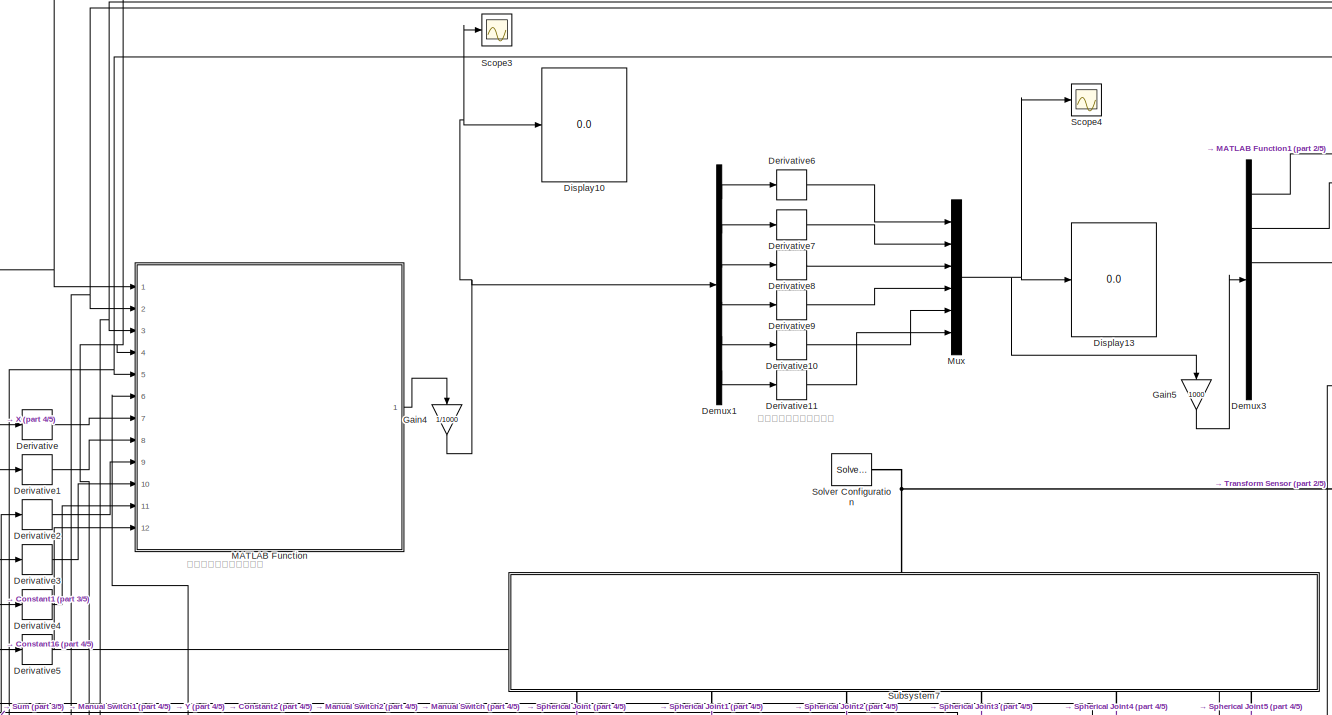
[diagram: root canvas - part 1/5, top center region]
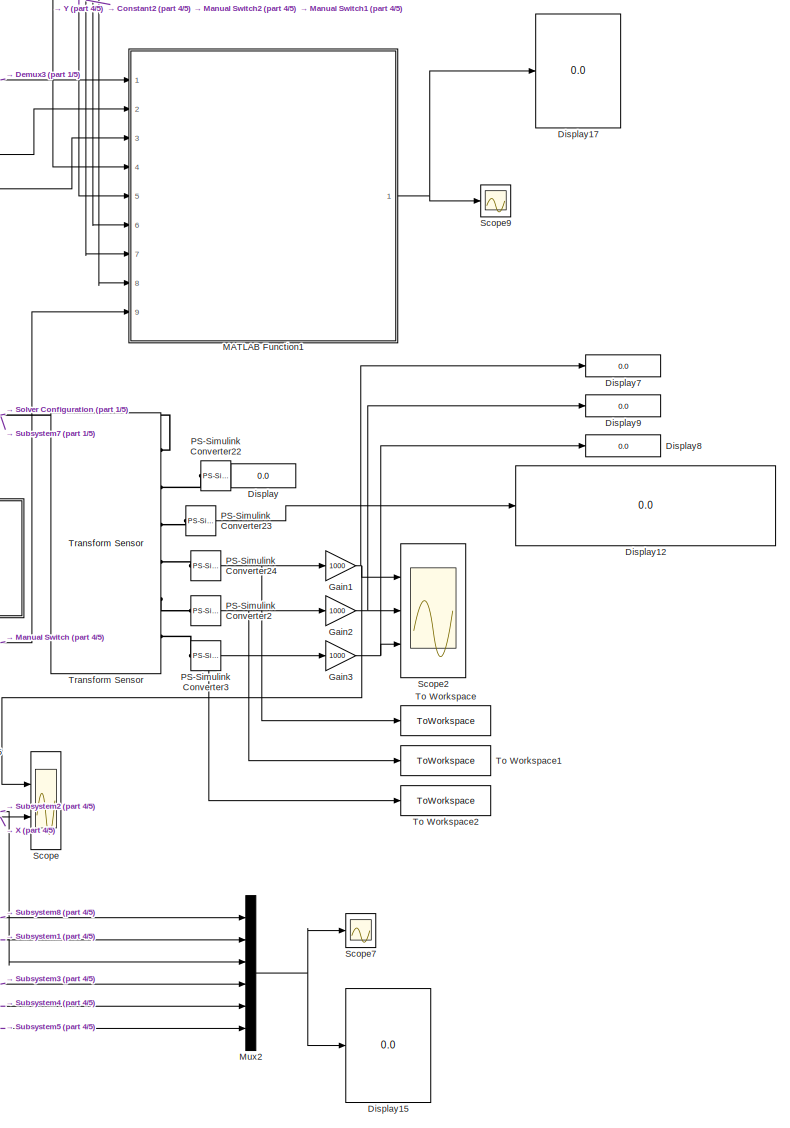
[diagram: root canvas - part 2/5, top right region]
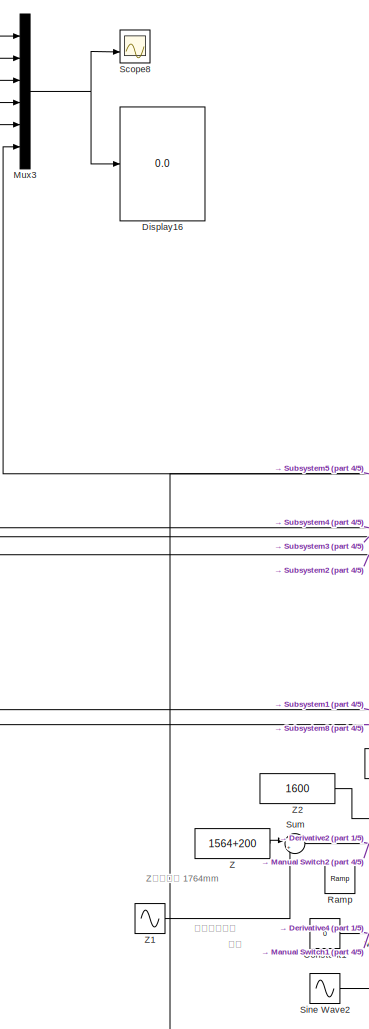
[diagram: root canvas - part 3/5, middle left region]
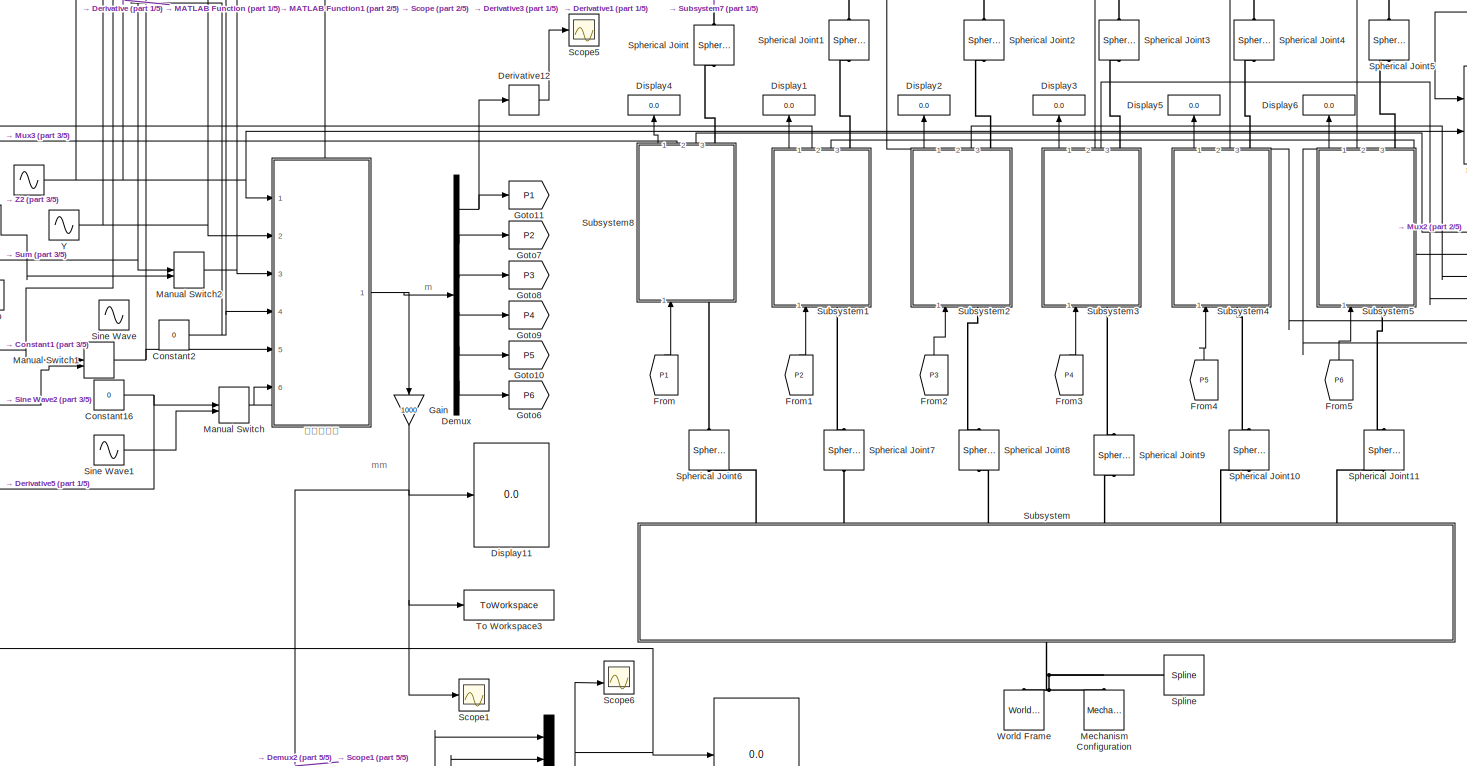
[diagram: root canvas - part 4/5, central region]
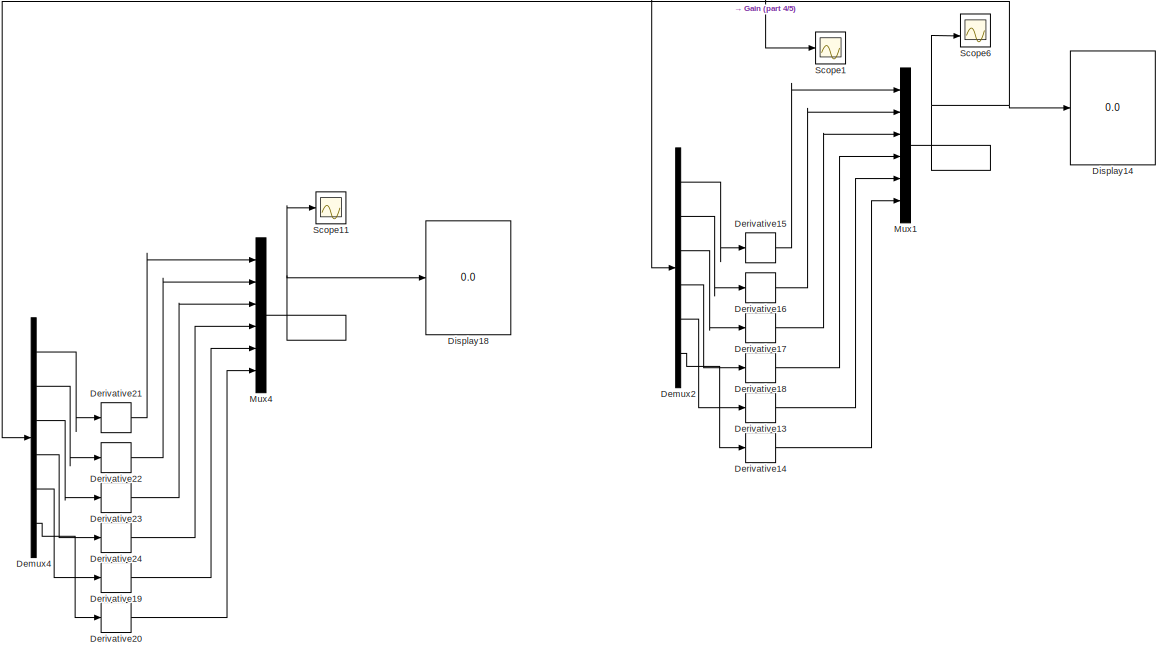
[diagram: root canvas - part 5/5, bottom left region]
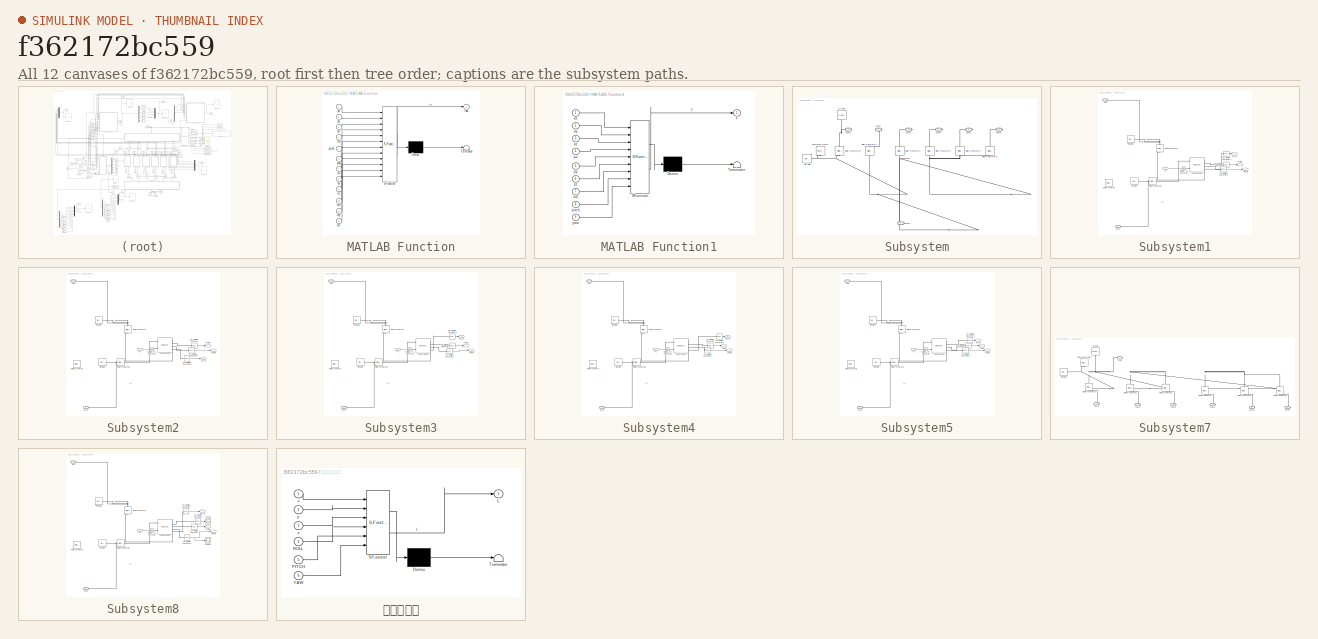
[diagram: thumbnail index - all 12 canvases of the model, root first then tree order]
MODEL slx_f362172bc559
KIND model
CONFIG AbsTol = 1e-3
CONFIG EnableMultiTasking = on
CONFIG FixedStep = auto
CONFIG MaxStep = auto
CONFIG MinStep = auto
CONFIG RelTol = 1e-3
CONFIG SampleTimeConstraint = Unconstrained
CONFIG SolverName = VariableStepAuto
CONFIG StartTime = 0.0
CONFIG StopTime = 10
BLOCK [Constant] Constant1
  Value = 0
BLOCK [Constant] Constant16
  Value = 0
BLOCK [Constant] Constant2
  Value = 0
BLOCK [Demux] Demux
  Outputs = 6
  Ports = [1, 6]
BLOCK [Demux] Demux1
  Outputs = 6
  Ports = [1, 6]
BLOCK [Demux] Demux2
  Outputs = 6
  Ports = [1, 6]
BLOCK [Demux] Demux3
  Outputs = 6
  Ports = [1, 6]
BLOCK [Demux] Demux4
  Outputs = 6
  Ports = [1, 6]
BLOCK [Derivative] Derivative
BLOCK [Derivative] Derivative1
BLOCK [Derivative] Derivative10
BLOCK [Derivative] Derivative11
BLOCK [Derivative] Derivative12
BLOCK [Derivative] Derivative13
BLOCK [Derivative] Derivative14
BLOCK [Derivative] Derivative15
BLOCK [Derivative] Derivative16
BLOCK [Derivative] Derivative17
BLOCK [Derivative] Derivative18
BLOCK [Derivative] Derivative19
BLOCK [Derivative] Derivative2
BLOCK [Derivative] Derivative20
BLOCK [Derivative] Derivative21
BLOCK [Derivative] Derivative22
BLOCK [Derivative] Derivative23
BLOCK [Derivative] Derivative24
BLOCK [Derivative] Derivative3
BLOCK [Derivative] Derivative4
BLOCK [Derivative] Derivative5
BLOCK [Derivative] Derivative6
BLOCK [Derivative] Derivative7
BLOCK [Derivative] Derivative8
BLOCK [Derivative] Derivative9
BLOCK [Display] Display
  Decimation = 1
  Ports = [1]
BLOCK [Display] Display1
  Decimation = 1
  NameLocation = right
  Ports = [1]
BLOCK [Display] Display10
  Decimation = 1
  Ports = [1]
BLOCK [Display] Display11
  Decimation = 1
  Ports = [1]
BLOCK [Display] Display12
  Decimation = 1
  Ports = [1]
BLOCK [Display] Display13
  Decimation = 1
  Ports = [1]
BLOCK [Display] Display14
  Decimation = 1
  Ports = [1]
BLOCK [Display] Display15
  Decimation = 1
  Ports = [1]
BLOCK [Display] Display16
  Decimation = 1
  Ports = [1]
BLOCK [Display] Display17
  Decimation = 1
  Ports = [1]
BLOCK [Display] Display18
  Decimation = 1
  Ports = [1]
BLOCK [Display] Display2
  Decimation = 1
  NameLocation = right
  Ports = [1]
BLOCK [Display] Display3
  Decimation = 1
  NameLocation = right
  Ports = [1]
BLOCK [Display] Display4
  Decimation = 1
  NameLocation = right
  Ports = [1]
BLOCK [Display] Display5
  Decimation = 1
  NameLocation = right
  Ports = [1]
BLOCK [Display] Display6
  Decimation = 1
  NameLocation = right
  Ports = [1]
BLOCK [Display] Display7
  Decimation = 1
  Ports = [1]
BLOCK [Display] Display8
  Decimation = 1
  Ports = [1]
BLOCK [Display] Display9
  Decimation = 1
  Ports = [1]
BLOCK [From] From
  GotoTag = P1
  NameLocation = right
BLOCK [From] From1
  GotoTag = P2
  NameLocation = right
BLOCK [From] From2
  GotoTag = P3
  NameLocation = right
BLOCK [From] From3
  GotoTag = P4
  NameLocation = right
BLOCK [From] From4
  GotoTag = P5
  NameLocation = right
BLOCK [From] From5
  GotoTag = P6
  NameLocation = right
BLOCK [Gain] Gain
  Gain = 1000
  NameLocation = left
BLOCK [Gain] Gain1
  Gain = 1000
BLOCK [Gain] Gain2
  Gain = 1000
BLOCK [Gain] Gain3
  Gain = 1000
BLOCK [Gain] Gain4
  Gain = 1/1000
  NameLocation = left
BLOCK [Gain] Gain5
  Gain = 1000
  NameLocation = left
BLOCK [Goto] Goto10
  GotoTag = P5
BLOCK [Goto] Goto11
  GotoTag = P1
BLOCK [Goto] Goto6
  GotoTag = P6
BLOCK [Goto] Goto7
  GotoTag = P2
BLOCK [Goto] Goto8
  GotoTag = P3
BLOCK [Goto] Goto9
  GotoTag = P4
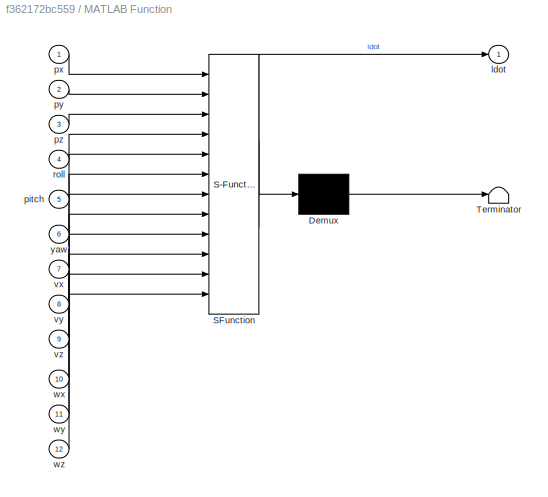
BLOCK [SubSystem] MATLAB Function
  ErrorFcn = Stateflow.Translate.translate
  PermitHierarchicalResolution = ExplicitOnly
  Ports = [12, 1]
  RequestExecContextInheritance = off
  SFBlockType = MATLAB Function
  TreatAsAtomicUnit = on
BLOCK [Demux] MATLAB Function/ Demux 
  Outputs = 1
  Ports = [1, 1]
BLOCK [S-Function] MATLAB Function/ SFunction 
  EnableBusSupport = on
  FunctionName = sf_sfun
  PortCounts = [12 2]
  Ports = [12, 2]
  SFcnIsStateOwnerBlock = off
  SFunctionDeploymentMode = off
  Tag = Stateflow S-Function 2
BLOCK [Terminator] MATLAB Function/ Terminator 
BLOCK [Outport] MATLAB Function/ldot
BLOCK [Inport] MATLAB Function/pitch
  Port = 5
BLOCK [Inport] MATLAB Function/px
BLOCK [Inport] MATLAB Function/py
  Port = 2
BLOCK [Inport] MATLAB Function/pz
  Port = 3
BLOCK [Inport] MATLAB Function/roll
  Port = 4
BLOCK [Inport] MATLAB Function/vx
  Port = 7
BLOCK [Inport] MATLAB Function/vy
  Port = 8
BLOCK [Inport] MATLAB Function/vz
  Port = 9
BLOCK [Inport] MATLAB Function/wx
  Port = 10
BLOCK [Inport] MATLAB Function/wy
  Port = 11
BLOCK [Inport] MATLAB Function/wz
  Port = 12
BLOCK [Inport] MATLAB Function/yaw
  Port = 6
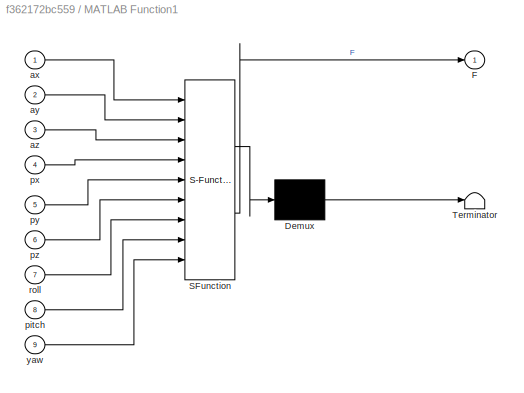
BLOCK [SubSystem] MATLAB Function1
  ErrorFcn = Stateflow.Translate.translate
  PermitHierarchicalResolution = ExplicitOnly
  Ports = [9, 1]
  RequestExecContextInheritance = off
  SFBlockType = MATLAB Function
  TreatAsAtomicUnit = on
BLOCK [Demux] MATLAB Function1/ Demux 
  Outputs = 1
  Ports = [1, 1]
BLOCK [S-Function] MATLAB Function1/ SFunction 
  EnableBusSupport = on
  FunctionName = sf_sfun
  PortCounts = [9 2]
  Ports = [9, 2]
  SFcnIsStateOwnerBlock = off
  SFunctionDeploymentMode = off
  Tag = Stateflow S-Function 3
BLOCK [Terminator] MATLAB Function1/ Terminator 
BLOCK [Outport] MATLAB Function1/F
BLOCK [Inport] MATLAB Function1/ax
BLOCK [Inport] MATLAB Function1/ay
  Port = 2
BLOCK [Inport] MATLAB Function1/az
  Port = 3
BLOCK [Inport] MATLAB Function1/pitch
  Port = 8
BLOCK [Inport] MATLAB Function1/px
  Port = 4
BLOCK [Inport] MATLAB Function1/py
  Port = 5
BLOCK [Inport] MATLAB Function1/pz
  Port = 6
BLOCK [Inport] MATLAB Function1/roll
  Port = 7
BLOCK [Inport] MATLAB Function1/yaw
  Port = 9
BLOCK [ManualSwitch] Manual Switch
BLOCK [ManualSwitch] Manual Switch1
BLOCK [ManualSwitch] Manual Switch2
BLOCK [Reference] Mechanism Configuration  REF=sm_lib/Utilities/Mechanism
Configuration
  NameLocation = right
  Ports = [0, 0, 0, 0, 0, 0, 1]
  SourceBlock = sm_lib/Utilities/Mechanism\nConfiguration
  SourceProductBaseCode = MS
  SourceType = Mechanism\nConfiguration
BLOCK [Mux] Mux
  DisplayOption = bar
  Inputs = 6
  Ports = [6, 1]
BLOCK [Mux] Mux1
  DisplayOption = bar
  Inputs = 6
  Ports = [6, 1]
BLOCK [Mux] Mux2
  DisplayOption = bar
  Inputs = 6
  Ports = [6, 1]
BLOCK [Mux] Mux3
  DisplayOption = bar
  Inputs = 6
  Ports = [6, 1]
BLOCK [Mux] Mux4
  DisplayOption = bar
  Inputs = 6
  Ports = [6, 1]
BLOCK [Reference] PS-Simulink Converter2  REF=nesl_utility/PS-Simulink
Converter
  Ports = [0, 1, 0, 0, 0, 1]
  SourceBlock = nesl_utility/PS-Simulink\nConverter
  SourceProductBaseCode = SS
  SourceType = PS-Simulink\nConverter
BLOCK [Reference] PS-Simulink Converter22  REF=nesl_utility/PS-Simulink
Converter
  Ports = [0, 1, 0, 0, 0, 1]
  SourceBlock = nesl_utility/PS-Simulink\nConverter
  SourceProductBaseCode = SS
  SourceType = PS-Simulink\nConverter
BLOCK [Reference] PS-Simulink Converter23  REF=nesl_utility/PS-Simulink
Converter
  Ports = [0, 1, 0, 0, 0, 1]
  SourceBlock = nesl_utility/PS-Simulink\nConverter
  SourceProductBaseCode = SS
  SourceType = PS-Simulink\nConverter
BLOCK [Reference] PS-Simulink Converter24  REF=nesl_utility/PS-Simulink
Converter
  Ports = [0, 1, 0, 0, 0, 1]
  SourceBlock = nesl_utility/PS-Simulink\nConverter
  SourceProductBaseCode = SS
  SourceType = PS-Simulink\nConverter
BLOCK [Reference] PS-Simulink Converter3  REF=nesl_utility/PS-Simulink
Converter
  Ports = [0, 1, 0, 0, 0, 1]
  SourceBlock = nesl_utility/PS-Simulink\nConverter
  SourceProductBaseCode = SS
  SourceType = PS-Simulink\nConverter
BLOCK [Reference] Ramp  REF=simulink/Sources/Ramp
  Ports = [0, 1]
  SourceBlock = simulink/Sources/Ramp
  SourceProductBaseCode = SL
  SourceType = Ramp
BLOCK [Scope] Scope
  Floating = off
  NumInputPorts = 2
  Ports = [2]
  ScopeSpecificationString = Simulink.scopes.TimeScopeBlockCfg('CurrentConfiguration', extmgr.ConfigurationSet(extmgr.Configuration('Core','General UI',true),extmgr.Configuration('Core','Source UI',true),extmgr.Configuration('Sources','WiredSimulink',true,'DataLoggingVariableName','ScopeData1'),extmgr.Configuration('Visuals','Time Domain',true,'SerializedDisplays',{struct('MinYLimReal','-125.00000','MaxYLimReal','125.00000','...<+1482ch>
BLOCK [Scope] Scope1
  Floating = off
  NumInputPorts = 1
  Ports = [1]
  ScopeSpecificationString = Simulink.scopes.TimeScopeBlockCfg('CurrentConfiguration', extmgr.ConfigurationSet(extmgr.Configuration('Core','General UI',true),extmgr.Configuration('Core','Source UI',true),extmgr.Configuration('Sources','WiredSimulink',true,'DataLoggingVariableName','ScopeData1'),extmgr.Configuration('Visuals','Time Domain',true,'SerializedDisplays',{struct('MinYLimReal','5.04853','MaxYLimReal','82.41151','YLab...<+1491ch>
BLOCK [Scope] Scope11
  Floating = off
  NumInputPorts = 1
  Ports = [1]
  ScopeSpecificationString = Simulink.scopes.TimeScopeBlockCfg('CurrentConfiguration', extmgr.ConfigurationSet(extmgr.Configuration('Core','General UI',true),extmgr.Configuration('Core','Source UI',true),extmgr.Configuration('Sources','WiredSimulink',true,'DataLoggingVariableName','ScopeData2'),extmgr.Configuration('Visuals','Time Domain',true,'SerializedDisplays',{struct('MinYLimReal','-3000','MaxYLimReal','3000','YLabelReal...<+1515ch>
BLOCK [Scope] Scope2
  Floating = off
  NumInputPorts = 3
  Ports = [3]
  ScopeSpecificationString = Simulink.scopes.TimeScopeBlockCfg('CurrentConfiguration', extmgr.ConfigurationSet(extmgr.Configuration('Core','General UI',true),extmgr.Configuration('Core','Source UI',true),extmgr.Configuration('Sources','WiredSimulink',true,'DataLoggingVariableName','ScopeData1'),extmgr.Configuration('Visuals','Time Domain',true,'SerializedDisplays',{struct('MinYLimReal','-307.99757','MaxYLimReal','1772.00000',...<+1471ch>
BLOCK [Scope] Scope3
  Floating = off
  NumInputPorts = 1
  Ports = [1]
  ScopeSpecificationString = Simulink.scopes.TimeScopeBlockCfg('CurrentConfiguration', extmgr.ConfigurationSet(extmgr.Configuration('Core','General UI',true),extmgr.Configuration('Core','Source UI',true),extmgr.Configuration('Sources','WiredSimulink',true,'DataLoggingVariableName','ScopeData1'),extmgr.Configuration('Visuals','Time Domain',true,'SerializedDisplays',{struct('MinYLimReal','-0.62979','MaxYLimReal','0.62759','YLab...<+1493ch>
BLOCK [Scope] Scope4
  Floating = off
  NumInputPorts = 1
  Ports = [1]
  ScopeSpecificationString = Simulink.scopes.TimeScopeBlockCfg('CurrentConfiguration', extmgr.ConfigurationSet(extmgr.Configuration('Core','General UI',true),extmgr.Configuration('Core','Source UI',true),extmgr.Configuration('Sources','WiredSimulink',true,'DataLoggingVariableName','ScopeData2'),extmgr.Configuration('Visuals','Time Domain',true,'SerializedDisplays',{struct('MinYLimReal','-5381.06599','MaxYLimReal','10456.82088...<+1592ch>
BLOCK [Scope] Scope5
  Floating = off
  NumInputPorts = 1
  Ports = [1]
  ScopeSpecificationString = Simulink.scopes.TimeScopeBlockCfg('CurrentConfiguration', extmgr.ConfigurationSet(extmgr.Configuration('Core','General UI',true),extmgr.Configuration('Core','Source UI',true),extmgr.Configuration('Sources','WiredSimulink',true,'DataLoggingVariableName','ScopeData3'),extmgr.Configuration('Visuals','Time Domain',true,'SerializedDisplays',{struct('MinYLimReal','-19.58193','MaxYLimReal','6128.42452','...<+1437ch>
BLOCK [Scope] Scope6
  Floating = off
  NumInputPorts = 2
  Ports = [2]
  ScopeSpecificationString = Simulink.scopes.TimeScopeBlockCfg('CurrentConfiguration', extmgr.ConfigurationSet(extmgr.Configuration('Core','General UI',true),extmgr.Configuration('Core','Source UI',true),extmgr.Configuration('Sources','WiredSimulink',true,'DataLoggingVariableName','ScopeData4'),extmgr.Configuration('Visuals','Time Domain',true,'SerializedDisplays',{struct('MinYLimReal','-624.86668','MaxYLimReal','622.53216','...<+1544ch>
BLOCK [Scope] Scope7
  Floating = off
  NumInputPorts = 1
  Ports = [1]
  ScopeSpecificationString = Simulink.scopes.TimeScopeBlockCfg('CurrentConfiguration', extmgr.ConfigurationSet(extmgr.Configuration('Core','General UI',true),extmgr.Configuration('Core','Source UI',true),extmgr.Configuration('Sources','WiredSimulink',true,'DataLoggingVariableName','ScopeData2'),extmgr.Configuration('Visuals','Time Domain',true,'PlotType','Line','SerializedDisplays',{struct('MinYLimReal','-38.03189','MaxYLimRe...<+1781ch>
BLOCK [Scope] Scope8
  Floating = off
  NumInputPorts = 2
  Ports = [2]
  ScopeSpecificationString = Simulink.scopes.TimeScopeBlockCfg('CurrentConfiguration', extmgr.ConfigurationSet(extmgr.Configuration('Core','General UI',true),extmgr.Configuration('Core','Source UI',true),extmgr.Configuration('Sources','WiredSimulink',true,'DataLoggingVariableName','ScopeData3'),extmgr.Configuration('Visuals','Time Domain',true,'SerializedDisplays',{struct('MinYLimReal','-0.08574','MaxYLimReal','0.08574','YLab...<+1505ch>
BLOCK [Scope] Scope9
  Floating = off
  NumInputPorts = 1
  Ports = [1]
  ScopeSpecificationString = Simulink.scopes.TimeScopeBlockCfg('CurrentConfiguration', extmgr.ConfigurationSet(extmgr.Configuration('Core','General UI',true),extmgr.Configuration('Core','Source UI',true),extmgr.Configuration('Sources','WiredSimulink',true,'DataLoggingVariableName','ScopeData1'),extmgr.Configuration('Visuals','Time Domain',true,'SerializedDisplays',{struct('MinYLimReal','-200','MaxYLimReal','200','YLabelReal',...<+1818ch>
BLOCK [Sin] Sine Wave
  Amplitude = pi/10
  Ports = [0, 1]
  SampleTime = 0
BLOCK [Sin] Sine Wave1
  Amplitude = pi/10
  Ports = [0, 1]
  SampleTime = 0
BLOCK [Sin] Sine Wave2
  Amplitude = pi/10
  Ports = [0, 1]
  SampleTime = 0
BLOCK [Reference] Solver Configuration  REF=nesl_utility/Solver
Configuration
  Ports = [0, 0, 0, 0, 0, 0, 1]
  SourceBlock = nesl_utility/Solver\nConfiguration
  SourceProductBaseCode = SS
  SourceType = Solver\nConfiguration
BLOCK [Reference] Spherical Joint  REF=sm_lib/Joints/Spherical
Joint
  NameLocation = left
  Ports = [0, 0, 0, 0, 0, 1, 1]
  SourceBlock = sm_lib/Joints/Spherical\nJoint
  SourceProductBaseCode = MS
  SourceType = Spherical\nJoint
BLOCK [Reference] Spherical Joint1  REF=sm_lib/Joints/Spherical
Joint
  NameLocation = left
  Ports = [0, 0, 0, 0, 0, 1, 1]
  SourceBlock = sm_lib/Joints/Spherical\nJoint
  SourceProductBaseCode = MS
  SourceType = Spherical\nJoint
BLOCK [Reference] Spherical Joint10  REF=sm_lib/Joints/Spherical
Joint
  NameLocation = right
  Ports = [0, 0, 0, 0, 0, 1, 1]
  SourceBlock = sm_lib/Joints/Spherical\nJoint
  SourceProductBaseCode = MS
  SourceType = Spherical\nJoint
BLOCK [Reference] Spherical Joint11  REF=sm_lib/Joints/Spherical
Joint
  NameLocation = right
  Ports = [0, 0, 0, 0, 0, 1, 1]
  SourceBlock = sm_lib/Joints/Spherical\nJoint
  SourceProductBaseCode = MS
  SourceType = Spherical\nJoint
BLOCK [Reference] Spherical Joint2  REF=sm_lib/Joints/Spherical
Joint
  NameLocation = left
  Ports = [0, 0, 0, 0, 0, 1, 1]
  SourceBlock = sm_lib/Joints/Spherical\nJoint
  SourceProductBaseCode = MS
  SourceType = Spherical\nJoint
BLOCK [Reference] Spherical Joint3  REF=sm_lib/Joints/Spherical
Joint
  NameLocation = left
  Ports = [0, 0, 0, 0, 0, 1, 1]
  SourceBlock = sm_lib/Joints/Spherical\nJoint
  SourceProductBaseCode = MS
  SourceType = Spherical\nJoint
BLOCK [Reference] Spherical Joint4  REF=sm_lib/Joints/Spherical
Joint
  NameLocation = left
  Ports = [0, 0, 0, 0, 0, 1, 1]
  SourceBlock = sm_lib/Joints/Spherical\nJoint
  SourceProductBaseCode = MS
  SourceType = Spherical\nJoint
BLOCK [Reference] Spherical Joint5  REF=sm_lib/Joints/Spherical
Joint
  NameLocation = left
  Ports = [0, 0, 0, 0, 0, 1, 1]
  SourceBlock = sm_lib/Joints/Spherical\nJoint
  SourceProductBaseCode = MS
  SourceType = Spherical\nJoint
BLOCK [Reference] Spherical Joint6  REF=sm_lib/Joints/Spherical
Joint
  NameLocation = right
  Ports = [0, 0, 0, 0, 0, 1, 1]
  SourceBlock = sm_lib/Joints/Spherical\nJoint
  SourceProductBaseCode = MS
  SourceType = Spherical\nJoint
BLOCK [Reference] Spherical Joint7  REF=sm_lib/Joints/Spherical
Joint
  NameLocation = right
  Ports = [0, 0, 0, 0, 0, 1, 1]
  SourceBlock = sm_lib/Joints/Spherical\nJoint
  SourceProductBaseCode = MS
  SourceType = Spherical\nJoint
BLOCK [Reference] Spherical Joint8  REF=sm_lib/Joints/Spherical
Joint
  NameLocation = right
  Ports = [0, 0, 0, 0, 0, 1, 1]
  SourceBlock = sm_lib/Joints/Spherical\nJoint
  SourceProductBaseCode = MS
  SourceType = Spherical\nJoint
BLOCK [Reference] Spherical Joint9  REF=sm_lib/Joints/Spherical
Joint
  NameLocation = right
  Ports = [0, 0, 0, 0, 0, 1, 1]
  SourceBlock = sm_lib/Joints/Spherical\nJoint
  SourceProductBaseCode = MS
  SourceType = Spherical\nJoint
BLOCK [Reference] Spline  REF=sm_lib/Curves and Surfaces/Spline
  Commented = on
  Ports = [0, 0, 0, 0, 0, 1, 1]
  SourceBlock = sm_lib/Curves and Surfaces/Spline
  SourceProductBaseCode = MS
  SourceType = Spline
BLOCK [SubSystem] Subsystem
  NameLocation = right
  Ports = [0, 0, 0, 0, 0, 1, 6]
  RequestExecContextInheritance = off
BLOCK [PMIOPort] Subsystem/Conn1
  Side = Right
BLOCK [PMIOPort] Subsystem/Conn2
  Port = 2
  Side = Right
BLOCK [PMIOPort] Subsystem/Conn3
  Port = 3
  Side = Right
BLOCK [PMIOPort] Subsystem/Conn4
  Port = 4
  Side = Right
BLOCK [PMIOPort] Subsystem/Conn5
  Port = 5
  Side = Right
BLOCK [PMIOPort] Subsystem/Conn6
  Port = 6
  Side = Right
BLOCK [PMIOPort] Subsystem/Conn7
  Port = 7
  Side = Left
BLOCK [Reference] Subsystem/File Solid  REF=sm_lib/Body Elements/File Solid
  Ports = [0, 0, 0, 0, 0, 0, 1]
  SourceBlock = sm_lib/Body Elements/File Solid
  SourceProductBaseCode = MS
  SourceType = File Solid
BLOCK [Reference] Subsystem/Graphic  REF=sm_lib/Body Elements/Graphic
  Commented = on
  NameLocation = left
  Ports = [0, 0, 0, 0, 0, 0, 1]
  SourceBlock = sm_lib/Body Elements/Graphic
  SourceProductBaseCode = MS
  SourceType = Graphic
BLOCK [Reference] Subsystem/Reference Frame  REF=sm_lib/Frames and
Transforms/Reference
Frame
  NameLocation = left
  Ports = [0, 0, 0, 0, 0, 0, 1]
  SourceBlock = sm_lib/Frames and\nTransforms/Reference\nFrame
  SourceProductBaseCode = MS
  SourceType = Reference\nFrame
BLOCK [Reference] Subsystem/Rigid Transform1  REF=sm_lib/Frames and
Transforms/Rigid
Transform
  NameLocation = right
  Ports = [0, 0, 0, 0, 0, 1, 1]
  SourceBlock = sm_lib/Frames and\nTransforms/Rigid\nTransform
  SourceProductBaseCode = MS
  SourceType = Rigid\nTransform
BLOCK [Reference] Subsystem/Rigid Transform14  REF=sm_lib/Frames and
Transforms/Rigid
Transform
  NameLocation = right
  Ports = [0, 0, 0, 0, 0, 1, 1]
  SourceBlock = sm_lib/Frames and\nTransforms/Rigid\nTransform
  SourceProductBaseCode = MS
  SourceType = Rigid\nTransform
BLOCK [Reference] Subsystem/Rigid Transform2  REF=sm_lib/Frames and
Transforms/Rigid
Transform
  NameLocation = right
  Ports = [0, 0, 0, 0, 0, 1, 1]
  SourceBlock = sm_lib/Frames and\nTransforms/Rigid\nTransform
  SourceProductBaseCode = MS
  SourceType = Rigid\nTransform
BLOCK [Reference] Subsystem/Rigid Transform3  REF=sm_lib/Frames and
Transforms/Rigid
Transform
  NameLocation = right
  Ports = [0, 0, 0, 0, 0, 1, 1]
  SourceBlock = sm_lib/Frames and\nTransforms/Rigid\nTransform
  SourceProductBaseCode = MS
  SourceType = Rigid\nTransform
BLOCK [Reference] Subsystem/Rigid Transform4  REF=sm_lib/Frames and
Transforms/Rigid
Transform
  NameLocation = right
  Ports = [0, 0, 0, 0, 0, 1, 1]
  SourceBlock = sm_lib/Frames and\nTransforms/Rigid\nTransform
  SourceProductBaseCode = MS
  SourceType = Rigid\nTransform
BLOCK [Reference] Subsystem/Rigid Transform5  REF=sm_lib/Frames and
Transforms/Rigid
Transform
  NameLocation = right
  Ports = [0, 0, 0, 0, 0, 1, 1]
  SourceBlock = sm_lib/Frames and\nTransforms/Rigid\nTransform
  SourceProductBaseCode = MS
  SourceType = Rigid\nTransform
BLOCK [SubSystem] Subsystem1
  NameLocation = right
  Ports = [1, 3, 0, 0, 0, 1, 1]
  RequestExecContextInheritance = off
BLOCK [PMIOPort] Subsystem1/Base
  Port = 2
  Side = Left
BLOCK [Reference] Subsystem1/Cylindrical Joint  REF=sm_lib/Joints/Cylindrical
Joint
  Ports = [0, 0, 0, 0, 0, 3, 4]
  SourceBlock = sm_lib/Joints/Cylindrical\nJoint
  SourceProductBaseCode = MS
  SourceType = Cylindrical\nJoint
BLOCK [Reference] Subsystem1/File Solid7  REF=sm_lib/Body Elements/File Solid
  Ports = [0, 0, 0, 0, 0, 0, 1]
  SourceBlock = sm_lib/Body Elements/File Solid
  SourceProductBaseCode = MS
  SourceType = File Solid
BLOCK [Reference] Subsystem1/File Solid8  REF=sm_lib/Body Elements/File Solid
  Ports = [0, 0, 0, 0, 0, 0, 1]
  SourceBlock = sm_lib/Body Elements/File Solid
  SourceProductBaseCode = MS
  SourceType = File Solid
BLOCK [Outport] Subsystem1/Force
  Port = 3
  VectorParamsAs1DForOutWhenUnconnected = off
BLOCK [Inport] Subsystem1/P1
BLOCK [Reference] Subsystem1/PS-Simulink Converter  REF=nesl_utility/PS-Simulink
Converter
  Ports = [0, 1, 0, 0, 0, 1]
  SourceBlock = nesl_utility/PS-Simulink\nConverter
  SourceProductBaseCode = SS
  SourceType = PS-Simulink\nConverter
BLOCK [Reference] Subsystem1/PS-Simulink Converter1  REF=nesl_utility/PS-Simulink
Converter
  Ports = [0, 1, 0, 0, 0, 1]
  SourceBlock = nesl_utility/PS-Simulink\nConverter
  SourceProductBaseCode = SS
  SourceType = PS-Simulink\nConverter
BLOCK [Reference] Subsystem1/PS-Simulink Converter3  REF=nesl_utility/PS-Simulink
Converter
  Ports = [0, 1, 0, 0, 0, 1]
  SourceBlock = nesl_utility/PS-Simulink\nConverter
  SourceProductBaseCode = SS
  SourceType = PS-Simulink\nConverter
BLOCK [Outport] Subsystem1/Position
  VectorParamsAs1DForOutWhenUnconnected = off
BLOCK [Reference] Subsystem1/Rigid Transform1  REF=sm_lib/Frames and
Transforms/Rigid
Transform
  Commented = on
  Ports = [0, 0, 0, 0, 0, 1, 1]
  SourceBlock = sm_lib/Frames and\nTransforms/Rigid\nTransform
  SourceProductBaseCode = MS
  SourceType = Rigid\nTransform
BLOCK [Reference] Subsystem1/Rigid Transform12  REF=sm_lib/Frames and
Transforms/Rigid
Transform
  Ports = [0, 0, 0, 0, 0, 1, 1]
  SourceBlock = sm_lib/Frames and\nTransforms/Rigid\nTransform
  SourceProductBaseCode = MS
  SourceType = Rigid\nTransform
BLOCK [Reference] Subsystem1/Rigid Transform13  REF=sm_lib/Frames and
Transforms/Rigid
Transform
  NameLocation = left
  Ports = [0, 0, 0, 0, 0, 1, 1]
  SourceBlock = sm_lib/Frames and\nTransforms/Rigid\nTransform
  SourceProductBaseCode = MS
  SourceType = Rigid\nTransform
BLOCK [Reference] Subsystem1/Simulink-PS Converter  REF=nesl_utility/Simulink-PS
Converter
  Ports = [1, 0, 0, 0, 0, 0, 1]
  SourceBlock = nesl_utility/Simulink-PS\nConverter
  SourceProductBaseCode = SS
  SourceType = Simulink-PS\nConverter
BLOCK [PMIOPort] Subsystem1/Top
  Side = Right
BLOCK [Outport] Subsystem1/Velocity
  Port = 2
  VectorParamsAs1DForOutWhenUnconnected = off
BLOCK [SubSystem] Subsystem2
  NameLocation = right
  Ports = [1, 3, 0, 0, 0, 1, 1]
  RequestExecContextInheritance = off
BLOCK [PMIOPort] Subsystem2/Base
  Port = 2
  Side = Left
BLOCK [Reference] Subsystem2/Cylindrical Joint  REF=sm_lib/Joints/Cylindrical
Joint
  Ports = [0, 0, 0, 0, 0, 3, 4]
  SourceBlock = sm_lib/Joints/Cylindrical\nJoint
  SourceProductBaseCode = MS
  SourceType = Cylindrical\nJoint
BLOCK [Reference] Subsystem2/File Solid7  REF=sm_lib/Body Elements/File Solid
  Ports = [0, 0, 0, 0, 0, 0, 1]
  SourceBlock = sm_lib/Body Elements/File Solid
  SourceProductBaseCode = MS
  SourceType = File Solid
BLOCK [Reference] Subsystem2/File Solid8  REF=sm_lib/Body Elements/File Solid
  Ports = [0, 0, 0, 0, 0, 0, 1]
  SourceBlock = sm_lib/Body Elements/File Solid
  SourceProductBaseCode = MS
  SourceType = File Solid
BLOCK [Outport] Subsystem2/Force
  Port = 3
  VectorParamsAs1DForOutWhenUnconnected = off
BLOCK [Inport] Subsystem2/P1
BLOCK [Reference] Subsystem2/PS-Simulink Converter  REF=nesl_utility/PS-Simulink
Converter
  Ports = [0, 1, 0, 0, 0, 1]
  SourceBlock = nesl_utility/PS-Simulink\nConverter
  SourceProductBaseCode = SS
  SourceType = PS-Simulink\nConverter
BLOCK [Reference] Subsystem2/PS-Simulink Converter1  REF=nesl_utility/PS-Simulink
Converter
  Ports = [0, 1, 0, 0, 0, 1]
  SourceBlock = nesl_utility/PS-Simulink\nConverter
  SourceProductBaseCode = SS
  SourceType = PS-Simulink\nConverter
BLOCK [Reference] Subsystem2/PS-Simulink Converter3  REF=nesl_utility/PS-Simulink
Converter
  Ports = [0, 1, 0, 0, 0, 1]
  SourceBlock = nesl_utility/PS-Simulink\nConverter
  SourceProductBaseCode = SS
  SourceType = PS-Simulink\nConverter
BLOCK [Outport] Subsystem2/Position
  VectorParamsAs1DForOutWhenUnconnected = off
BLOCK [Reference] Subsystem2/Rigid Transform1  REF=sm_lib/Frames and
Transforms/Rigid
Transform
  Commented = on
  Ports = [0, 0, 0, 0, 0, 1, 1]
  SourceBlock = sm_lib/Frames and\nTransforms/Rigid\nTransform
  SourceProductBaseCode = MS
  SourceType = Rigid\nTransform
BLOCK [Reference] Subsystem2/Rigid Transform12  REF=sm_lib/Frames and
Transforms/Rigid
Transform
  Ports = [0, 0, 0, 0, 0, 1, 1]
  SourceBlock = sm_lib/Frames and\nTransforms/Rigid\nTransform
  SourceProductBaseCode = MS
  SourceType = Rigid\nTransform
BLOCK [Reference] Subsystem2/Rigid Transform13  REF=sm_lib/Frames and
Transforms/Rigid
Transform
  NameLocation = left
  Ports = [0, 0, 0, 0, 0, 1, 1]
  SourceBlock = sm_lib/Frames and\nTransforms/Rigid\nTransform
  SourceProductBaseCode = MS
  SourceType = Rigid\nTransform
BLOCK [Reference] Subsystem2/Simulink-PS Converter  REF=nesl_utility/Simulink-PS
Converter
  Ports = [1, 0, 0, 0, 0, 0, 1]
  SourceBlock = nesl_utility/Simulink-PS\nConverter
  SourceProductBaseCode = SS
  SourceType = Simulink-PS\nConverter
BLOCK [PMIOPort] Subsystem2/Top
  Side = Right
BLOCK [Outport] Subsystem2/Velocity
  Port = 2
  VectorParamsAs1DForOutWhenUnconnected = off
BLOCK [SubSystem] Subsystem3
  NameLocation = right
  Ports = [1, 3, 0, 0, 0, 1, 1]
  RequestExecContextInheritance = off
BLOCK [PMIOPort] Subsystem3/Base
  Port = 2
  Side = Left
BLOCK [Reference] Subsystem3/Cylindrical Joint  REF=sm_lib/Joints/Cylindrical
Joint
  Ports = [0, 0, 0, 0, 0, 3, 4]
  SourceBlock = sm_lib/Joints/Cylindrical\nJoint
  SourceProductBaseCode = MS
  SourceType = Cylindrical\nJoint
BLOCK [Reference] Subsystem3/File Solid7  REF=sm_lib/Body Elements/File Solid
  Ports = [0, 0, 0, 0, 0, 0, 1]
  SourceBlock = sm_lib/Body Elements/File Solid
  SourceProductBaseCode = MS
  SourceType = File Solid
BLOCK [Reference] Subsystem3/File Solid8  REF=sm_lib/Body Elements/File Solid
  Ports = [0, 0, 0, 0, 0, 0, 1]
  SourceBlock = sm_lib/Body Elements/File Solid
  SourceProductBaseCode = MS
  SourceType = File Solid
BLOCK [Outport] Subsystem3/Force
  Port = 3
  VectorParamsAs1DForOutWhenUnconnected = off
BLOCK [Inport] Subsystem3/P1
BLOCK [Reference] Subsystem3/PS-Simulink Converter  REF=nesl_utility/PS-Simulink
Converter
  Ports = [0, 1, 0, 0, 0, 1]
  SourceBlock = nesl_utility/PS-Simulink\nConverter
  SourceProductBaseCode = SS
  SourceType = PS-Simulink\nConverter
BLOCK [Reference] Subsystem3/PS-Simulink Converter1  REF=nesl_utility/PS-Simulink
Converter
  Ports = [0, 1, 0, 0, 0, 1]
  SourceBlock = nesl_utility/PS-Simulink\nConverter
  SourceProductBaseCode = SS
  SourceType = PS-Simulink\nConverter
BLOCK [Reference] Subsystem3/PS-Simulink Converter3  REF=nesl_utility/PS-Simulink
Converter
  Ports = [0, 1, 0, 0, 0, 1]
  SourceBlock = nesl_utility/PS-Simulink\nConverter
  SourceProductBaseCode = SS
  SourceType = PS-Simulink\nConverter
BLOCK [Outport] Subsystem3/Position
  VectorParamsAs1DForOutWhenUnconnected = off
BLOCK [Reference] Subsystem3/Rigid Transform1  REF=sm_lib/Frames and
Transforms/Rigid
Transform
  Commented = on
  Ports = [0, 0, 0, 0, 0, 1, 1]
  SourceBlock = sm_lib/Frames and\nTransforms/Rigid\nTransform
  SourceProductBaseCode = MS
  SourceType = Rigid\nTransform
BLOCK [Reference] Subsystem3/Rigid Transform12  REF=sm_lib/Frames and
Transforms/Rigid
Transform
  Ports = [0, 0, 0, 0, 0, 1, 1]
  SourceBlock = sm_lib/Frames and\nTransforms/Rigid\nTransform
  SourceProductBaseCode = MS
  SourceType = Rigid\nTransform
BLOCK [Reference] Subsystem3/Rigid Transform13  REF=sm_lib/Frames and
Transforms/Rigid
Transform
  NameLocation = left
  Ports = [0, 0, 0, 0, 0, 1, 1]
  SourceBlock = sm_lib/Frames and\nTransforms/Rigid\nTransform
  SourceProductBaseCode = MS
  SourceType = Rigid\nTransform
BLOCK [Reference] Subsystem3/Simulink-PS Converter  REF=nesl_utility/Simulink-PS
Converter
  Ports = [1, 0, 0, 0, 0, 0, 1]
  SourceBlock = nesl_utility/Simulink-PS\nConverter
  SourceProductBaseCode = SS
  SourceType = Simulink-PS\nConverter
BLOCK [PMIOPort] Subsystem3/Top
  Side = Right
BLOCK [Outport] Subsystem3/Velocity
  Port = 2
  VectorParamsAs1DForOutWhenUnconnected = off
BLOCK [SubSystem] Subsystem4
  NameLocation = right
  Ports = [1, 3, 0, 0, 0, 1, 1]
  RequestExecContextInheritance = off
BLOCK [PMIOPort] Subsystem4/Base
  Port = 2
  Side = Left
BLOCK [Reference] Subsystem4/Cylindrical Joint  REF=sm_lib/Joints/Cylindrical
Joint
  Ports = [0, 0, 0, 0, 0, 3, 4]
  SourceBlock = sm_lib/Joints/Cylindrical\nJoint
  SourceProductBaseCode = MS
  SourceType = Cylindrical\nJoint
BLOCK [Reference] Subsystem4/File Solid7  REF=sm_lib/Body Elements/File Solid
  Ports = [0, 0, 0, 0, 0, 0, 1]
  SourceBlock = sm_lib/Body Elements/File Solid
  SourceProductBaseCode = MS
  SourceType = File Solid
BLOCK [Reference] Subsystem4/File Solid8  REF=sm_lib/Body Elements/File Solid
  Ports = [0, 0, 0, 0, 0, 0, 1]
  SourceBlock = sm_lib/Body Elements/File Solid
  SourceProductBaseCode = MS
  SourceType = File Solid
BLOCK [Outport] Subsystem4/Force
  Port = 3
  VectorParamsAs1DForOutWhenUnconnected = off
BLOCK [Inport] Subsystem4/P1
BLOCK [Reference] Subsystem4/PS-Simulink Converter  REF=nesl_utility/PS-Simulink
Converter
  Ports = [0, 1, 0, 0, 0, 1]
  SourceBlock = nesl_utility/PS-Simulink\nConverter
  SourceProductBaseCode = SS
  SourceType = PS-Simulink\nConverter
BLOCK [Reference] Subsystem4/PS-Simulink Converter1  REF=nesl_utility/PS-Simulink
Converter
  Ports = [0, 1, 0, 0, 0, 1]
  SourceBlock = nesl_utility/PS-Simulink\nConverter
  SourceProductBaseCode = SS
  SourceType = PS-Simulink\nConverter
BLOCK [Reference] Subsystem4/PS-Simulink Converter3  REF=nesl_utility/PS-Simulink
Converter
  Ports = [0, 1, 0, 0, 0, 1]
  SourceBlock = nesl_utility/PS-Simulink\nConverter
  SourceProductBaseCode = SS
  SourceType = PS-Simulink\nConverter
BLOCK [Outport] Subsystem4/Position
  VectorParamsAs1DForOutWhenUnconnected = off
BLOCK [Reference] Subsystem4/Rigid Transform1  REF=sm_lib/Frames and
Transforms/Rigid
Transform
  Commented = on
  Ports = [0, 0, 0, 0, 0, 1, 1]
  SourceBlock = sm_lib/Frames and\nTransforms/Rigid\nTransform
  SourceProductBaseCode = MS
  SourceType = Rigid\nTransform
BLOCK [Reference] Subsystem4/Rigid Transform12  REF=sm_lib/Frames and
Transforms/Rigid
Transform
  Ports = [0, 0, 0, 0, 0, 1, 1]
  SourceBlock = sm_lib/Frames and\nTransforms/Rigid\nTransform
  SourceProductBaseCode = MS
  SourceType = Rigid\nTransform
BLOCK [Reference] Subsystem4/Rigid Transform13  REF=sm_lib/Frames and
Transforms/Rigid
Transform
  NameLocation = left
  Ports = [0, 0, 0, 0, 0, 1, 1]
  SourceBlock = sm_lib/Frames and\nTransforms/Rigid\nTransform
  SourceProductBaseCode = MS
  SourceType = Rigid\nTransform
BLOCK [Reference] Subsystem4/Simulink-PS Converter  REF=nesl_utility/Simulink-PS
Converter
  Ports = [1, 0, 0, 0, 0, 0, 1]
  SourceBlock = nesl_utility/Simulink-PS\nConverter
  SourceProductBaseCode = SS
  SourceType = Simulink-PS\nConverter
BLOCK [PMIOPort] Subsystem4/Top
  Side = Right
BLOCK [Outport] Subsystem4/Velocity
  Port = 2
  VectorParamsAs1DForOutWhenUnconnected = off
BLOCK [SubSystem] Subsystem5
  NameLocation = right
  Ports = [1, 3, 0, 0, 0, 1, 1]
  RequestExecContextInheritance = off
BLOCK [PMIOPort] Subsystem5/Base
  Port = 2
  Side = Left
BLOCK [Reference] Subsystem5/Cylindrical Joint  REF=sm_lib/Joints/Cylindrical
Joint
  Ports = [0, 0, 0, 0, 0, 3, 4]
  SourceBlock = sm_lib/Joints/Cylindrical\nJoint
  SourceProductBaseCode = MS
  SourceType = Cylindrical\nJoint
BLOCK [Reference] Subsystem5/File Solid7  REF=sm_lib/Body Elements/File Solid
  Ports = [0, 0, 0, 0, 0, 0, 1]
  SourceBlock = sm_lib/Body Elements/File Solid
  SourceProductBaseCode = MS
  SourceType = File Solid
BLOCK [Reference] Subsystem5/File Solid8  REF=sm_lib/Body Elements/File Solid
  Ports = [0, 0, 0, 0, 0, 0, 1]
  SourceBlock = sm_lib/Body Elements/File Solid
  SourceProductBaseCode = MS
  SourceType = File Solid
BLOCK [Outport] Subsystem5/Force
  Port = 3
  VectorParamsAs1DForOutWhenUnconnected = off
BLOCK [Inport] Subsystem5/P1
BLOCK [Reference] Subsystem5/PS-Simulink Converter  REF=nesl_utility/PS-Simulink
Converter
  Ports = [0, 1, 0, 0, 0, 1]
  SourceBlock = nesl_utility/PS-Simulink\nConverter
  SourceProductBaseCode = SS
  SourceType = PS-Simulink\nConverter
BLOCK [Reference] Subsystem5/PS-Simulink Converter1  REF=nesl_utility/PS-Simulink
Converter
  Ports = [0, 1, 0, 0, 0, 1]
  SourceBlock = nesl_utility/PS-Simulink\nConverter
  SourceProductBaseCode = SS
  SourceType = PS-Simulink\nConverter
BLOCK [Reference] Subsystem5/PS-Simulink Converter3  REF=nesl_utility/PS-Simulink
Converter
  Ports = [0, 1, 0, 0, 0, 1]
  SourceBlock = nesl_utility/PS-Simulink\nConverter
  SourceProductBaseCode = SS
  SourceType = PS-Simulink\nConverter
BLOCK [Outport] Subsystem5/Position
  VectorParamsAs1DForOutWhenUnconnected = off
BLOCK [Reference] Subsystem5/Rigid Transform1  REF=sm_lib/Frames and
Transforms/Rigid
Transform
  Commented = on
  Ports = [0, 0, 0, 0, 0, 1, 1]
  SourceBlock = sm_lib/Frames and\nTransforms/Rigid\nTransform
  SourceProductBaseCode = MS
  SourceType = Rigid\nTransform
BLOCK [Reference] Subsystem5/Rigid Transform12  REF=sm_lib/Frames and
Transforms/Rigid
Transform
  Ports = [0, 0, 0, 0, 0, 1, 1]
  SourceBlock = sm_lib/Frames and\nTransforms/Rigid\nTransform
  SourceProductBaseCode = MS
  SourceType = Rigid\nTransform
BLOCK [Reference] Subsystem5/Rigid Transform13  REF=sm_lib/Frames and
Transforms/Rigid
Transform
  NameLocation = left
  Ports = [0, 0, 0, 0, 0, 1, 1]
  SourceBlock = sm_lib/Frames and\nTransforms/Rigid\nTransform
  SourceProductBaseCode = MS
  SourceType = Rigid\nTransform
BLOCK [Reference] Subsystem5/Simulink-PS Converter  REF=nesl_utility/Simulink-PS
Converter
  Ports = [1, 0, 0, 0, 0, 0, 1]
  SourceBlock = nesl_utility/Simulink-PS\nConverter
  SourceProductBaseCode = SS
  SourceType = Simulink-PS\nConverter
BLOCK [PMIOPort] Subsystem5/Top
  Side = Right
BLOCK [Outport] Subsystem5/Velocity
  Port = 2
  VectorParamsAs1DForOutWhenUnconnected = off
BLOCK [SubSystem] Subsystem7
  NameLocation = left
  Ports = [0, 0, 0, 0, 0, 1, 6]
  RequestExecContextInheritance = off
BLOCK [PMIOPort] Subsystem7/Conn1
  Side = Right
BLOCK [PMIOPort] Subsystem7/Conn2
  Port = 2
  Side = Right
BLOCK [PMIOPort] Subsystem7/Conn3
  Port = 3
  Side = Right
BLOCK [PMIOPort] Subsystem7/Conn4
  Port = 4
  Side = Right
BLOCK [PMIOPort] Subsystem7/Conn5
  Port = 5
  Side = Right
BLOCK [PMIOPort] Subsystem7/Conn6
  Port = 6
  Side = Right
BLOCK [Reference] Subsystem7/File Solid9  REF=sm_lib/Body Elements/File Solid
  Ports = [0, 0, 0, 0, 0, 0, 1]
  SourceBlock = sm_lib/Body Elements/File Solid
  SourceProductBaseCode = MS
  SourceType = File Solid
BLOCK [Reference] Subsystem7/Graphic  REF=sm_lib/Body Elements/Graphic
  NameLocation = left
  Ports = [0, 0, 0, 0, 0, 0, 1]
  SourceBlock = sm_lib/Body Elements/Graphic
  SourceProductBaseCode = MS
  SourceType = Graphic
BLOCK [Reference] Subsystem7/Reference Frame7  REF=sm_lib/Frames and
Transforms/Reference
Frame
  NameLocation = left
  Ports = [0, 0, 0, 0, 0, 0, 1]
  SourceBlock = sm_lib/Frames and\nTransforms/Reference\nFrame
  SourceProductBaseCode = MS
  SourceType = Reference\nFrame
BLOCK [Reference] Subsystem7/Rigid Transform14  REF=sm_lib/Frames and
Transforms/Rigid
Transform
  NameLocation = left
  Ports = [0, 0, 0, 0, 0, 1, 1]
  SourceBlock = sm_lib/Frames and\nTransforms/Rigid\nTransform
  SourceProductBaseCode = MS
  SourceType = Rigid\nTransform
BLOCK [Reference] Subsystem7/Rigid Transform15  REF=sm_lib/Frames and
Transforms/Rigid
Transform
  NameLocation = left
  Ports = [0, 0, 0, 0, 0, 1, 1]
  SourceBlock = sm_lib/Frames and\nTransforms/Rigid\nTransform
  SourceProductBaseCode = MS
  SourceType = Rigid\nTransform
BLOCK [Reference] Subsystem7/Rigid Transform16  REF=sm_lib/Frames and
Transforms/Rigid
Transform
  NameLocation = left
  Ports = [0, 0, 0, 0, 0, 1, 1]
  SourceBlock = sm_lib/Frames and\nTransforms/Rigid\nTransform
  SourceProductBaseCode = MS
  SourceType = Rigid\nTransform
BLOCK [Reference] Subsystem7/Rigid Transform17  REF=sm_lib/Frames and
Transforms/Rigid
Transform
  NameLocation = left
  Ports = [0, 0, 0, 0, 0, 1, 1]
  SourceBlock = sm_lib/Frames and\nTransforms/Rigid\nTransform
  SourceProductBaseCode = MS
  SourceType = Rigid\nTransform
BLOCK [Reference] Subsystem7/Rigid Transform18  REF=sm_lib/Frames and
Transforms/Rigid
Transform
  NameLocation = left
  Ports = [0, 0, 0, 0, 0, 1, 1]
  SourceBlock = sm_lib/Frames and\nTransforms/Rigid\nTransform
  SourceProductBaseCode = MS
  SourceType = Rigid\nTransform
BLOCK [Reference] Subsystem7/Rigid Transform19  REF=sm_lib/Frames and
Transforms/Rigid
Transform
  NameLocation = left
  Ports = [0, 0, 0, 0, 0, 1, 1]
  SourceBlock = sm_lib/Frames and\nTransforms/Rigid\nTransform
  SourceProductBaseCode = MS
  SourceType = Rigid\nTransform
BLOCK [PMIOPort] Subsystem7/end
  Port = 7
  Side = Left
BLOCK [SubSystem] Subsystem8
  NameLocation = right
  Ports = [1, 3, 0, 0, 0, 1, 1]
  RequestExecContextInheritance = off
BLOCK [PMIOPort] Subsystem8/Base
  Port = 2
  Side = Left
BLOCK [Reference] Subsystem8/Cylindrical Joint  REF=sm_lib/Joints/Cylindrical
Joint
  Ports = [0, 0, 0, 0, 0, 3, 5]
  SourceBlock = sm_lib/Joints/Cylindrical\nJoint
  SourceProductBaseCode = MS
  SourceType = Cylindrical\nJoint
BLOCK [Reference] Subsystem8/File Solid7  REF=sm_lib/Body Elements/File Solid
  Ports = [0, 0, 0, 0, 0, 0, 1]
  SourceBlock = sm_lib/Body Elements/File Solid
  SourceProductBaseCode = MS
  SourceType = File Solid
BLOCK [Reference] Subsystem8/File Solid8  REF=sm_lib/Body Elements/File Solid
  Ports = [0, 0, 0, 0, 0, 0, 1]
  SourceBlock = sm_lib/Body Elements/File Solid
  SourceProductBaseCode = MS
  SourceType = File Solid
BLOCK [Outport] Subsystem8/Force
  Port = 3
  VectorParamsAs1DForOutWhenUnconnected = off
BLOCK [Inport] Subsystem8/P1
BLOCK [Reference] Subsystem8/PS-Simulink Converter  REF=nesl_utility/PS-Simulink
Converter
  Ports = [0, 1, 0, 0, 0, 1]
  SourceBlock = nesl_utility/PS-Simulink\nConverter
  SourceProductBaseCode = SS
  SourceType = PS-Simulink\nConverter
BLOCK [Reference] Subsystem8/PS-Simulink Converter1  REF=nesl_utility/PS-Simulink
Converter
  Ports = [0, 1, 0, 0, 0, 1]
  SourceBlock = nesl_utility/PS-Simulink\nConverter
  SourceProductBaseCode = SS
  SourceType = PS-Simulink\nConverter
BLOCK [Reference] Subsystem8/PS-Simulink Converter2  REF=nesl_utility/PS-Simulink
Converter
  Ports = [0, 1, 0, 0, 0, 1]
  SourceBlock = nesl_utility/PS-Simulink\nConverter
  SourceProductBaseCode = SS
  SourceType = PS-Simulink\nConverter
BLOCK [Reference] Subsystem8/PS-Simulink Converter3  REF=nesl_utility/PS-Simulink
Converter
  Ports = [0, 1, 0, 0, 0, 1]
  SourceBlock = nesl_utility/PS-Simulink\nConverter
  SourceProductBaseCode = SS
  SourceType = PS-Simulink\nConverter
BLOCK [Outport] Subsystem8/Position
  VectorParamsAs1DForOutWhenUnconnected = off
BLOCK [Reference] Subsystem8/Rigid Transform1  REF=sm_lib/Frames and
Transforms/Rigid
Transform
  Commented = on
  Ports = [0, 0, 0, 0, 0, 1, 1]
  SourceBlock = sm_lib/Frames and\nTransforms/Rigid\nTransform
  SourceProductBaseCode = MS
  SourceType = Rigid\nTransform
BLOCK [Reference] Subsystem8/Rigid Transform12  REF=sm_lib/Frames and
Transforms/Rigid
Transform
  Ports = [0, 0, 0, 0, 0, 1, 1]
  SourceBlock = sm_lib/Frames and\nTransforms/Rigid\nTransform
  SourceProductBaseCode = MS
  SourceType = Rigid\nTransform
BLOCK [Reference] Subsystem8/Rigid Transform13  REF=sm_lib/Frames and
Transforms/Rigid
Transform
  NameLocation = left
  Ports = [0, 0, 0, 0, 0, 1, 1]
  SourceBlock = sm_lib/Frames and\nTransforms/Rigid\nTransform
  SourceProductBaseCode = MS
  SourceType = Rigid\nTransform
BLOCK [Scope] Subsystem8/Scope
  Floating = off
  NumInputPorts = 1
  Ports = [1]
  ScopeSpecificationString = Simulink.scopes.TimeScopeBlockCfg('CurrentConfiguration', extmgr.ConfigurationSet(extmgr.Configuration('Core','General UI',true),extmgr.Configuration('Core','Source UI',true),extmgr.Configuration('Sources','WiredSimulink',true,'DataLoggingVariableName','ScopeData1'),extmgr.Configuration('Visuals','Time Domain',true,'SerializedDisplays',{struct('MinYLimReal','-1.00000','MaxYLimReal','1.00000','YLab...<+1417ch>
BLOCK [Scope] Subsystem8/Scope1
  Floating = off
  NumInputPorts = 1
  Ports = [1]
  ScopeSpecificationString = Simulink.scopes.TimeScopeBlockCfg('CurrentConfiguration', extmgr.ConfigurationSet(extmgr.Configuration('Core','General UI',true),extmgr.Configuration('Core','Source UI',true),extmgr.Configuration('Sources','WiredSimulink',true,'DataLoggingVariableName','ScopeData1'),extmgr.Configuration('Visuals','Time Domain',true,'SerializedDisplays',{struct('MinYLimReal','-0.07031','MaxYLimReal','0.07031','YLab...<+1417ch>
BLOCK [Reference] Subsystem8/Simulink-PS Converter  REF=nesl_utility/Simulink-PS
Converter
  Ports = [1, 0, 0, 0, 0, 0, 1]
  SourceBlock = nesl_utility/Simulink-PS\nConverter
  SourceProductBaseCode = SS
  SourceType = Simulink-PS\nConverter
BLOCK [PMIOPort] Subsystem8/Top
  Side = Right
BLOCK [Outport] Subsystem8/Velocity
  Port = 2
  VectorParamsAs1DForOutWhenUnconnected = off
BLOCK [Sum] Sum
  Inputs = |++
  Ports = [2, 1]
BLOCK [ToWorkspace] To Workspace
  FixptAsFi = on
  MaxDataPoints = inf
  Ports = [1]
  SampleTime = -1
  SaveFormat = Timeseries
  VariableName = x
BLOCK [ToWorkspace] To Workspace1
  FixptAsFi = on
  MaxDataPoints = inf
  Ports = [1]
  SampleTime = -1
  SaveFormat = Timeseries
  VariableName = y
BLOCK [ToWorkspace] To Workspace2
  FixptAsFi = on
  MaxDataPoints = inf
  Ports = [1]
  SampleTime = -1
  SaveFormat = Timeseries
  VariableName = z
BLOCK [ToWorkspace] To Workspace3
  FixptAsFi = on
  MaxDataPoints = inf
  Ports = [1]
  SampleTime = -1
  SaveFormat = Timeseries
  VariableName = L
BLOCK [Reference] Transform Sensor  REF=sm_lib/Frames and
Transforms/Transform
Sensor
  Ports = [0, 0, 0, 0, 0, 1, 6]
  SourceBlock = sm_lib/Frames and\nTransforms/Transform\nSensor
  SourceProductBaseCode = MS
  SourceType = Transform\nSensor
BLOCK [Reference] World Frame  REF=sm_lib/Frames and
Transforms/World Frame
  NameLocation = right
  Ports = [0, 0, 0, 0, 0, 0, 1]
  SourceBlock = sm_lib/Frames and\nTransforms/World Frame
  SourceProductBaseCode = MS
  SourceType = World Frame
BLOCK [Sin] X
  Amplitude = 100
  Ports = [0, 1]
  SampleTime = 0
BLOCK [Sin] Y
  Amplitude = 100
  Frequency = 3
  Ports = [0, 1]
  SampleTime = 0
BLOCK [Constant] Z
  Value = 1564+200
BLOCK [Sin] Z1
  Amplitude = 100
  Frequency = 4.5
  Ports = [0, 1]
  SampleTime = 0
BLOCK [Constant] Z2
  Value = 1600
BLOCK [SubSystem] 运动学逆解
  ErrorFcn = Stateflow.Translate.translate
  PermitHierarchicalResolution = ExplicitOnly
  Ports = [6, 1]
  RequestExecContextInheritance = off
  SFBlockType = MATLAB Function
  TreatAsAtomicUnit = on
BLOCK [Demux] 运动学逆解/ Demux 
  Outputs = 1
  Ports = [1, 1]
BLOCK [S-Function] 运动学逆解/ SFunction 
  EnableBusSupport = on
  FunctionName = sf_sfun
  PortCounts = [6 2]
  Ports = [6, 2]
  SFcnIsStateOwnerBlock = off
  SFunctionDeploymentMode = off
  Tag = Stateflow S-Function 1
BLOCK [Terminator] 运动学逆解/ Terminator 
BLOCK [Outport] 运动学逆解/L
BLOCK [Inport] 运动学逆解/PITCH
  Port = 5
BLOCK [Inport] 运动学逆解/ROLL
  Port = 4
BLOCK [Inport] 运动学逆解/YAW
  Port = 6
BLOCK [Inport] 运动学逆解/x
BLOCK [Inport] 运动学逆解/y
  Port = 2
BLOCK [Inport] 运动学逆解/z
  Port = 3
ANNOTATION (root): Z初始高度 1764mm
ANNOTATION (root): m
ANNOTATION (root): mm
ANNOTATION (root): 差分法求电缸运动加速度
ANNOTATION (root): 弧度
ANNOTATION (root): 用雅克比矩阵求杆件速度
ANNOTATION (root): 角度不能太大
ANNOTATION Subsystem1: 120
ANNOTATION Subsystem2: 120
ANNOTATION Subsystem3: 120
ANNOTATION Subsystem4: 120
ANNOTATION Subsystem5: 120
ANNOTATION Subsystem8: 120
NET Constant16:1 -> Derivative5:1, Manual Switch:1
NET Constant1:1 -> Derivative4:1, Manual Switch1:1
NET Constant2:1 -> Derivative3:1, MATLAB Function1:7, MATLAB Function:4, 运动学逆解:4
LINE Demux1:1 -> Derivative6:1
LINE Demux1:2 -> Derivative7:1
LINE Demux1:3 -> Derivative8:1
LINE Demux1:4 -> Derivative9:1
LINE Demux1:5 -> Derivative10:1
LINE Demux1:6 -> Derivative11:1
LINE Demux2:1 -> Derivative15:1
LINE Demux2:2 -> Derivative16:1
LINE Demux2:3 -> Derivative17:1
LINE Demux2:4 -> Derivative18:1
LINE Demux2:5 -> Derivative13:1
LINE Demux2:6 -> Derivative14:1
LINE Demux3:1 -> MATLAB Function1:1
LINE Demux3:2 -> MATLAB Function1:2
LINE Demux3:3 -> MATLAB Function1:3
LINE Demux4:1 -> Derivative21:1
LINE Demux4:2 -> Derivative22:1
LINE Demux4:3 -> Derivative23:1
LINE Demux4:4 -> Derivative24:1
LINE Demux4:5 -> Derivative19:1
LINE Demux4:6 -> Derivative20:1
NET Demux:1 -> Derivative12:1, Goto11:1
LINE Demux:2 -> Goto7:1
LINE Demux:3 -> Goto8:1
LINE Demux:4 -> Goto9:1
LINE Demux:5 -> Goto10:1
LINE Demux:6 -> Goto6:1
LINE Derivative10:1 -> Mux:5
LINE Derivative11:1 -> Mux:6
LINE Derivative12:1 -> Scope5:1
LINE Derivative13:1 -> Mux1:5
LINE Derivative14:1 -> Mux1:6
LINE Derivative15:1 -> Mux1:1
LINE Derivative16:1 -> Mux1:2
LINE Derivative17:1 -> Mux1:3
LINE Derivative18:1 -> Mux1:4
LINE Derivative19:1 -> Mux4:5
LINE Derivative1:1 -> MATLAB Function:8
LINE Derivative20:1 -> Mux4:6
LINE Derivative21:1 -> Mux4:1
LINE Derivative22:1 -> Mux4:2
LINE Derivative23:1 -> Mux4:3
LINE Derivative24:1 -> Mux4:4
LINE Derivative2:1 -> MATLAB Function:9
LINE Derivative3:1 -> MATLAB Function:10
LINE Derivative4:1 -> MATLAB Function:11
LINE Derivative5:1 -> MATLAB Function:12
LINE Derivative6:1 -> Mux:1
LINE Derivative7:1 -> Mux:2
LINE Derivative8:1 -> Mux:3
LINE Derivative9:1 -> Mux:4
LINE Derivative:1 -> MATLAB Function:7
LINE From1:1 -> Subsystem1:1
LINE From2:1 -> Subsystem2:1
LINE From3:1 -> Subsystem3:1
LINE From4:1 -> Subsystem4:1
LINE From5:1 -> Subsystem5:1
LINE From:1 -> Subsystem8:1
NET Gain1:1 -> Display7:1, Scope2:1, Scope:1
NET Gain2:1 -> Display9:1, Scope2:2
NET Gain3:1 -> Display8:1, Scope2:3
NET Gain4:1 -> Demux1:1, Display10:1, Scope3:1
LINE Gain5:1 -> Demux3:1
NET Gain:1 -> Demux2:1, Display11:1, Scope1:1, To Workspace3:1
NET MATLAB Function1:1 -> Display17:1, Scope9:1
LINE MATLAB Function:1 -> Gain4:1
NET Manual Switch1:1 -> MATLAB Function1:8, MATLAB Function:5, 运动学逆解:5
NET Manual Switch2:1 -> MATLAB Function1:6, MATLAB Function:3, 运动学逆解:3
NET Manual Switch:1 -> MATLAB Function1:9, MATLAB Function:6, 运动学逆解:6
NET Mux1:1 -> Demux4:1, Display14:1, Scope6:2
NET Mux2:1 -> Display15:1, Scope7:1
NET Mux3:1 -> Display16:1, Scope8:2
NET Mux4:1 -> Display18:1, Scope11:1
NET Mux:1 -> Display13:1, Gain5:1, Scope4:1
LINE PS-Simulink Converter22:1 -> Display:1
LINE PS-Simulink Converter23:1 -> Display12:1
NET PS-Simulink Converter24:1 -> Gain1:1, To Workspace:1
NET PS-Simulink Converter2:1 -> Gain2:1, To Workspace1:1
NET PS-Simulink Converter3:1 -> Gain3:1, To Workspace2:1
LINE Sine Wave1:1 -> Manual Switch:2
LINE Sine Wave2:1 -> Manual Switch1:2
LINE Subsystem1/P1:1 -> Subsystem1/Simulink-PS Converter:1
LINE Subsystem1/PS-Simulink Converter1:1 -> Subsystem1/Velocity:1
LINE Subsystem1/PS-Simulink Converter3:1 -> Subsystem1/Force:1
LINE Subsystem1/PS-Simulink Converter:1 -> Subsystem1/Position:1
LINE Subsystem1:1 -> Display1:1
LINE Subsystem1:2 -> Mux3:2
LINE Subsystem1:3 -> Mux2:2
LINE Subsystem2/P1:1 -> Subsystem2/Simulink-PS Converter:1
LINE Subsystem2/PS-Simulink Converter1:1 -> Subsystem2/Velocity:1
LINE Subsystem2/PS-Simulink Converter3:1 -> Subsystem2/Force:1
LINE Subsystem2/PS-Simulink Converter:1 -> Subsystem2/Position:1
LINE Subsystem2:1 -> Display2:1
LINE Subsystem2:2 -> Mux3:3
LINE Subsystem2:3 -> Mux2:3
LINE Subsystem3/P1:1 -> Subsystem3/Simulink-PS Converter:1
LINE Subsystem3/PS-Simulink Converter1:1 -> Subsystem3/Velocity:1
LINE Subsystem3/PS-Simulink Converter3:1 -> Subsystem3/Force:1
LINE Subsystem3/PS-Simulink Converter:1 -> Subsystem3/Position:1
LINE Subsystem3:1 -> Display3:1
LINE Subsystem3:2 -> Mux3:4
LINE Subsystem3:3 -> Mux2:4
LINE Subsystem4/P1:1 -> Subsystem4/Simulink-PS Converter:1
LINE Subsystem4/PS-Simulink Converter1:1 -> Subsystem4/Velocity:1
LINE Subsystem4/PS-Simulink Converter3:1 -> Subsystem4/Force:1
LINE Subsystem4/PS-Simulink Converter:1 -> Subsystem4/Position:1
LINE Subsystem4:1 -> Display5:1
LINE Subsystem4:2 -> Mux3:5
LINE Subsystem4:3 -> Mux2:5
LINE Subsystem5/P1:1 -> Subsystem5/Simulink-PS Converter:1
LINE Subsystem5/PS-Simulink Converter1:1 -> Subsystem5/Velocity:1
LINE Subsystem5/PS-Simulink Converter3:1 -> Subsystem5/Force:1
LINE Subsystem5/PS-Simulink Converter:1 -> Subsystem5/Position:1
LINE Subsystem5:1 -> Display6:1
LINE Subsystem5:2 -> Mux3:6
LINE Subsystem5:3 -> Mux2:6
LINE Subsystem8/P1:1 -> Subsystem8/Simulink-PS Converter:1
NET Subsystem8/PS-Simulink Converter1:1 -> Subsystem8/Scope1:1, Subsystem8/Velocity:1
LINE Subsystem8/PS-Simulink Converter2:1 -> Subsystem8/Scope:1
LINE Subsystem8/PS-Simulink Converter3:1 -> Subsystem8/Force:1
LINE Subsystem8/PS-Simulink Converter:1 -> Subsystem8/Position:1
LINE Subsystem8:1 -> Display4:1
LINE Subsystem8:2 -> Mux3:1
LINE Subsystem8:3 -> Mux2:1
NET Sum:1 -> Derivative2:1, Manual Switch2:1
NET X:1 -> Derivative:1, MATLAB Function1:4, MATLAB Function:1, Scope:2, 运动学逆解:1
NET Y:1 -> Derivative1:1, MATLAB Function1:5, MATLAB Function:2, 运动学逆解:2
LINE Z1:1 -> Sum:2
LINE Z2:1 -> Manual Switch2:2
LINE Z:1 -> Sum:1
NET 运动学逆解:1 -> Demux:1, Gain:1
PNET net1: Mechanism Configuration:RConn1 -- Spline:LConn1 -- Subsystem:LConn1 -- World Frame:RConn1
PLINE PS-Simulink Converter22:LConn1 -- Transform Sensor:RConn2
PLINE PS-Simulink Converter23:LConn1 -- Transform Sensor:RConn3
PLINE PS-Simulink Converter24:LConn1 -- Transform Sensor:RConn4
PLINE PS-Simulink Converter2:LConn1 -- Transform Sensor:RConn5
PLINE PS-Simulink Converter3:LConn1 -- Transform Sensor:RConn6
PNET net2: Solver Configuration:RConn1 -- Subsystem7:LConn1 -- Transform Sensor:RConn1
PLINE Spherical Joint10:LConn1 -- Subsystem:RConn5
PLINE Spherical Joint10:RConn1 -- Subsystem4:LConn1
PLINE Spherical Joint11:LConn1 -- Subsystem:RConn6
PLINE Spherical Joint11:RConn1 -- Subsystem5:LConn1
PLINE Spherical Joint1:LConn1 -- Subsystem7:RConn2
PLINE Spherical Joint1:RConn1 -- Subsystem1:RConn1
PLINE Spherical Joint2:LConn1 -- Subsystem7:RConn3
PLINE Spherical Joint2:RConn1 -- Subsystem2:RConn1
PLINE Spherical Joint3:LConn1 -- Subsystem7:RConn4
PLINE Spherical Joint3:RConn1 -- Subsystem3:RConn1
PLINE Spherical Joint4:LConn1 -- Subsystem7:RConn5
PLINE Spherical Joint4:RConn1 -- Subsystem4:RConn1
PLINE Spherical Joint5:LConn1 -- Subsystem7:RConn6
PLINE Spherical Joint5:RConn1 -- Subsystem5:RConn1
PLINE Spherical Joint6:LConn1 -- Subsystem:RConn1
PLINE Spherical Joint6:RConn1 -- Subsystem8:LConn1
PLINE Spherical Joint7:LConn1 -- Subsystem:RConn2
PLINE Spherical Joint7:RConn1 -- Subsystem1:LConn1
PLINE Spherical Joint8:LConn1 -- Subsystem:RConn3
PLINE Spherical Joint8:RConn1 -- Subsystem2:LConn1
PLINE Spherical Joint9:LConn1 -- Subsystem:RConn4
PLINE Spherical Joint9:RConn1 -- Subsystem3:LConn1
PLINE Spherical Joint:LConn1 -- Subsystem7:RConn1
PLINE Spherical Joint:RConn1 -- Subsystem8:RConn1
PNET net3: Subsystem/Conn1:RConn1 -- Subsystem/Graphic:RConn1 -- Subsystem/Rigid Transform14:RConn1
PLINE Subsystem/Conn2:RConn1 -- Subsystem/Rigid Transform1:RConn1
PLINE Subsystem/Conn3:RConn1 -- Subsystem/Rigid Transform2:RConn1
PLINE Subsystem/Conn4:RConn1 -- Subsystem/Rigid Transform3:RConn1
PLINE Subsystem/Conn5:RConn1 -- Subsystem/Rigid Transform4:RConn1
PLINE Subsystem/Conn6:RConn1 -- Subsystem/Rigid Transform5:RConn1
PNET net4: Subsystem/Conn7:RConn1 -- Subsystem/File Solid:RConn1 -- Subsystem/Reference Frame:RConn1 -- Subsystem/Rigid Transform14:LConn1 -- Subsystem/Rigid Transform1:LConn1 -- Subsystem/Rigid Transform2:LConn1 -- Subsystem/Rigid Transform3:LConn1 -- Subsystem/Rigid Transform4:LConn1 -- Subsystem/Rigid Transform5:LConn1
PNET net5: Subsystem1/Base:RConn1 -- Subsystem1/File Solid7:RConn1 -- Subsystem1/Rigid Transform12:LConn1
PLINE Subsystem1/Cylindrical Joint:LConn1 -- Subsystem1/Rigid Transform12:RConn1
PLINE Subsystem1/Cylindrical Joint:LConn3 -- Subsystem1/Simulink-PS Converter:RConn1
PLINE Subsystem1/Cylindrical Joint:RConn1 -- Subsystem1/Rigid Transform13:RConn1
PLINE Subsystem1/Cylindrical Joint:RConn2 -- Subsystem1/PS-Simulink Converter:LConn1
PLINE Subsystem1/Cylindrical Joint:RConn3 -- Subsystem1/PS-Simulink Converter1:LConn1
PLINE Subsystem1/Cylindrical Joint:RConn4 -- Subsystem1/PS-Simulink Converter3:LConn1
PNET net6: Subsystem1/File Solid8:RConn1 -- Subsystem1/Rigid Transform13:LConn1 -- Subsystem1/Top:RConn1
PNET net7: Subsystem2/Base:RConn1 -- Subsystem2/File Solid7:RConn1 -- Subsystem2/Rigid Transform12:LConn1
PLINE Subsystem2/Cylindrical Joint:LConn1 -- Subsystem2/Rigid Transform12:RConn1
PLINE Subsystem2/Cylindrical Joint:LConn3 -- Subsystem2/Simulink-PS Converter:RConn1
PLINE Subsystem2/Cylindrical Joint:RConn1 -- Subsystem2/Rigid Transform13:RConn1
PLINE Subsystem2/Cylindrical Joint:RConn2 -- Subsystem2/PS-Simulink Converter:LConn1
PLINE Subsystem2/Cylindrical Joint:RConn3 -- Subsystem2/PS-Simulink Converter1:LConn1
PLINE Subsystem2/Cylindrical Joint:RConn4 -- Subsystem2/PS-Simulink Converter3:LConn1
PNET net8: Subsystem2/File Solid8:RConn1 -- Subsystem2/Rigid Transform13:LConn1 -- Subsystem2/Top:RConn1
PNET net9: Subsystem3/Base:RConn1 -- Subsystem3/File Solid7:RConn1 -- Subsystem3/Rigid Transform12:LConn1
PLINE Subsystem3/Cylindrical Joint:LConn1 -- Subsystem3/Rigid Transform12:RConn1
PLINE Subsystem3/Cylindrical Joint:LConn3 -- Subsystem3/Simulink-PS Converter:RConn1
PLINE Subsystem3/Cylindrical Joint:RConn1 -- Subsystem3/Rigid Transform13:RConn1
PLINE Subsystem3/Cylindrical Joint:RConn2 -- Subsystem3/PS-Simulink Converter:LConn1
PLINE Subsystem3/Cylindrical Joint:RConn3 -- Subsystem3/PS-Simulink Converter1:LConn1
PLINE Subsystem3/Cylindrical Joint:RConn4 -- Subsystem3/PS-Simulink Converter3:LConn1
PNET net10: Subsystem3/File Solid8:RConn1 -- Subsystem3/Rigid Transform13:LConn1 -- Subsystem3/Top:RConn1
PNET net11: Subsystem4/Base:RConn1 -- Subsystem4/File Solid7:RConn1 -- Subsystem4/Rigid Transform12:LConn1
PLINE Subsystem4/Cylindrical Joint:LConn1 -- Subsystem4/Rigid Transform12:RConn1
PLINE Subsystem4/Cylindrical Joint:LConn3 -- Subsystem4/Simulink-PS Converter:RConn1
PLINE Subsystem4/Cylindrical Joint:RConn1 -- Subsystem4/Rigid Transform13:RConn1
PLINE Subsystem4/Cylindrical Joint:RConn2 -- Subsystem4/PS-Simulink Converter:LConn1
PLINE Subsystem4/Cylindrical Joint:RConn3 -- Subsystem4/PS-Simulink Converter1:LConn1
PLINE Subsystem4/Cylindrical Joint:RConn4 -- Subsystem4/PS-Simulink Converter3:LConn1
PNET net12: Subsystem4/File Solid8:RConn1 -- Subsystem4/Rigid Transform13:LConn1 -- Subsystem4/Top:RConn1
PNET net13: Subsystem5/Base:RConn1 -- Subsystem5/File Solid7:RConn1 -- Subsystem5/Rigid Transform12:LConn1
PLINE Subsystem5/Cylindrical Joint:LConn1 -- Subsystem5/Rigid Transform12:RConn1
PLINE Subsystem5/Cylindrical Joint:LConn3 -- Subsystem5/Simulink-PS Converter:RConn1
PLINE Subsystem5/Cylindrical Joint:RConn1 -- Subsystem5/Rigid Transform13:RConn1
PLINE Subsystem5/Cylindrical Joint:RConn2 -- Subsystem5/PS-Simulink Converter:LConn1
PLINE Subsystem5/Cylindrical Joint:RConn3 -- Subsystem5/PS-Simulink Converter1:LConn1
PLINE Subsystem5/Cylindrical Joint:RConn4 -- Subsystem5/PS-Simulink Converter3:LConn1
PNET net14: Subsystem5/File Solid8:RConn1 -- Subsystem5/Rigid Transform13:LConn1 -- Subsystem5/Top:RConn1
PLINE Subsystem7/Conn1:RConn1 -- Subsystem7/Rigid Transform14:RConn1
PLINE Subsystem7/Conn2:RConn1 -- Subsystem7/Rigid Transform15:RConn1
PLINE Subsystem7/Conn3:RConn1 -- Subsystem7/Rigid Transform16:RConn1
PLINE Subsystem7/Conn4:RConn1 -- Subsystem7/Rigid Transform17:RConn1
PLINE Subsystem7/Conn5:RConn1 -- Subsystem7/Rigid Transform18:RConn1
PLINE Subsystem7/Conn6:RConn1 -- Subsystem7/Rigid Transform19:RConn1
PNET net15: Subsystem7/File Solid9:RConn1 -- Subsystem7/Graphic:RConn1 -- Subsystem7/Reference Frame7:RConn1 -- Subsystem7/Rigid Transform14:LConn1 -- Subsystem7/Rigid Transform15:LConn1 -- Subsystem7/Rigid Transform16:LConn1 -- Subsystem7/Rigid Transform17:LConn1 -- Subsystem7/Rigid Transform18:LConn1 -- Subsystem7/Rigid Transform19:LConn1 -- Subsystem7/end:RConn1
PNET net16: Subsystem8/Base:RConn1 -- Subsystem8/File Solid7:RConn1 -- Subsystem8/Rigid Transform12:LConn1
PLINE Subsystem8/Cylindrical Joint:LConn1 -- Subsystem8/Rigid Transform12:RConn1
PLINE Subsystem8/Cylindrical Joint:LConn3 -- Subsystem8/Simulink-PS Converter:RConn1
PLINE Subsystem8/Cylindrical Joint:RConn1 -- Subsystem8/Rigid Transform13:RConn1
PLINE Subsystem8/Cylindrical Joint:RConn2 -- Subsystem8/PS-Simulink Converter2:LConn1
PLINE Subsystem8/Cylindrical Joint:RConn3 -- Subsystem8/PS-Simulink Converter:LConn1
PLINE Subsystem8/Cylindrical Joint:RConn4 -- Subsystem8/PS-Simulink Converter1:LConn1
PLINE Subsystem8/Cylindrical Joint:RConn5 -- Subsystem8/PS-Simulink Converter3:LConn1
PNET net17: Subsystem8/File Solid8:RConn1 -- Subsystem8/Rigid Transform13:LConn1 -- Subsystem8/Top:RConn1
note: NET lines group one-source signal fan-out (src -> all destinations, sorted); 1:1 wires keep LINE; PNET lines group multi-terminal physical nets as a canonical sorted terminal list (undirected conserving connections); 2-terminal nets keep the pairwise PLINE form
CHART 运动学逆解 states=1 transitions=1
  STATE_LABEL 'eML_blk_kernel()'
  STATE_LABEL "SCRIPT:\nfunction L = fcn(x,y,z,ROLL,PITCH,YAW)\ncoder.extrinsic('rotz');\ncoder.extrinsic('roty');\ncoder.extrinsic('rotx');\n% 逆解\n% function L  = Stewart_IK_AlgebraFunc(x,y,z,a,b,g)\n%%运动学参数\n%零初始位置时静平台位置（相对于静平台坐标系）\nB1=[-169.76;-581.96;49.49];\nB2=[130.07;-592.10;49.49];\nB3=[588.88;143.98;49.49];\nB4=[447.74;408.70;49.49];\nB5=[-419.12;438;49.49];\nB6=[-577.81;183.41;49.49];\n%零初始位置时动平台位置（相对于动平台坐标系）\nP1=[-35...<+599ch>"
CHART MATLAB Function states=1 transitions=1
  STATE_LABEL 'eML_blk_kernel()'
  STATE_LABEL 'SCRIPT:\nfunction ldot = fcn(px,py,pz,roll,pitch,yaw,vx,vy,vz,wx,wy,wz)\nXdot = [vx;vy;vz;wx;wy;wz];\nJ = inv(Jacobian_Stewart(px,py,pz,roll,pitch,yaw));\nldot = ones(6,1);\nldot = J*Xdot;\n\nfunction J = Jacobian_Stewart(px,py,pz,roll,pitch,yaw)\n% syms px py pz roll pitch yaw;\nL = IK_Stewart_vector(px,py,pz,roll,pitch,yaw);\nL_vector = ones(3,6);\nu_vector = ones(3,6);\nfor i = 1:6\n    L_vector(:,i) = L(i,...<+998ch>'
CHART MATLAB Function1 states=1 transitions=1
  STATE_LABEL 'eML_blk_kernel()'
  STATE_LABEL "SCRIPT:\nfunction F = fcn(ax,ay,az,px,py,pz,roll,pitch,yaw)\na = [ax/1000;ay/1000;az/1000;0;0;0];\nJ = Jacobian_Stewart(px,py,pz,roll,pitch,yaw);\nF = ones(6,1);\nm = 20\nF = 20*J*a;\n\nfunction J = Jacobian_Stewart(px,py,pz,roll,pitch,yaw)\n% syms px py pz roll pitch yaw;\nL = IK_Stewart_vector(px,py,pz,roll,pitch,yaw);\nL_vector = ones(3,6);\nu_vector = ones(3,6);\nfor i = 1:6\n    L_vector(:,i) = L(i,:).';\n ...<+1003ch>"
CHART  states=0 transitions=0
CHART  states=0 transitions=0
CHART  states=0 transitions=0
